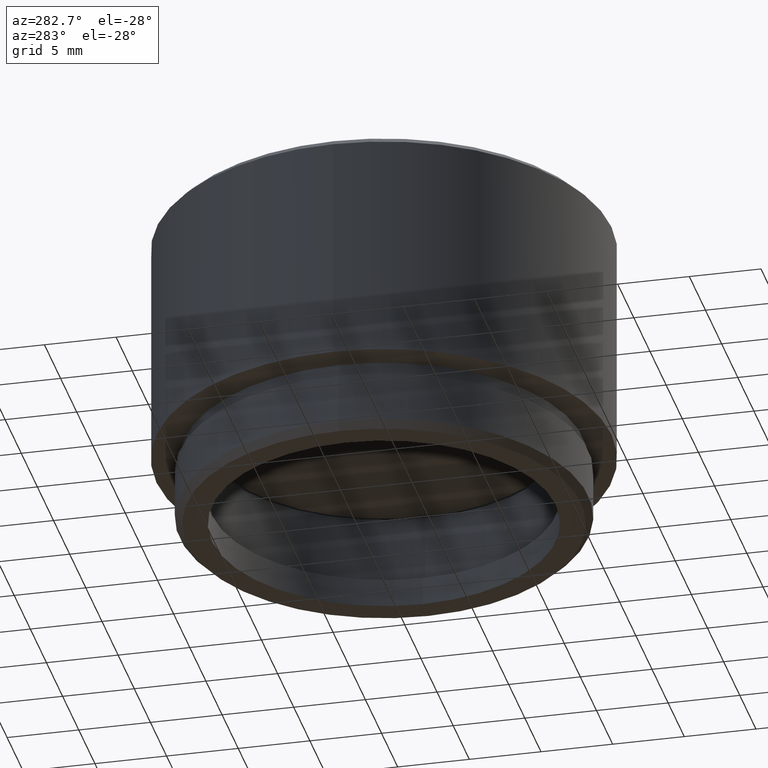
[diagram: clean part render]
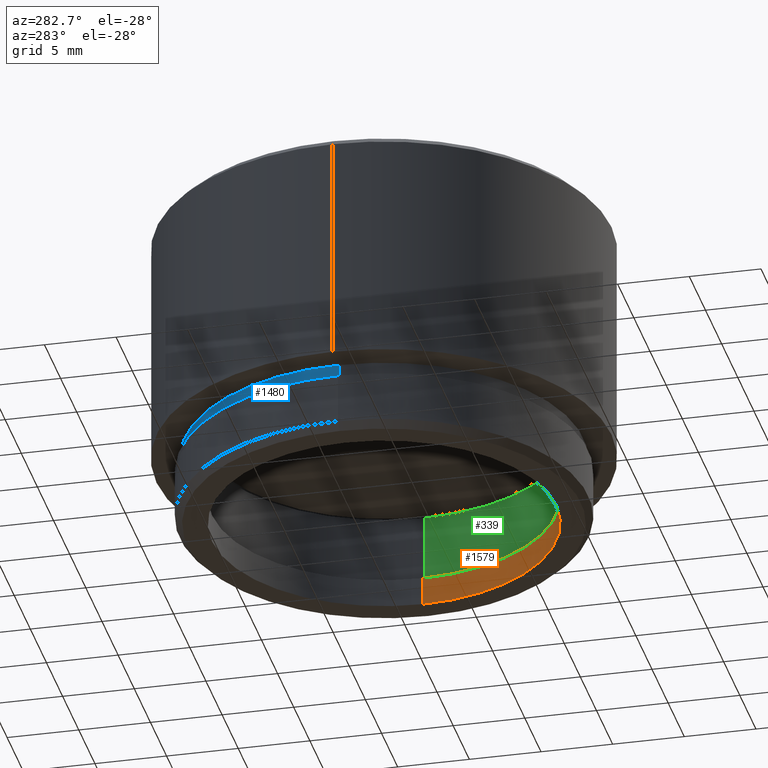
[diagram: same view with three faces highlighted in distinct colors, each labeled with its STEP entity id]
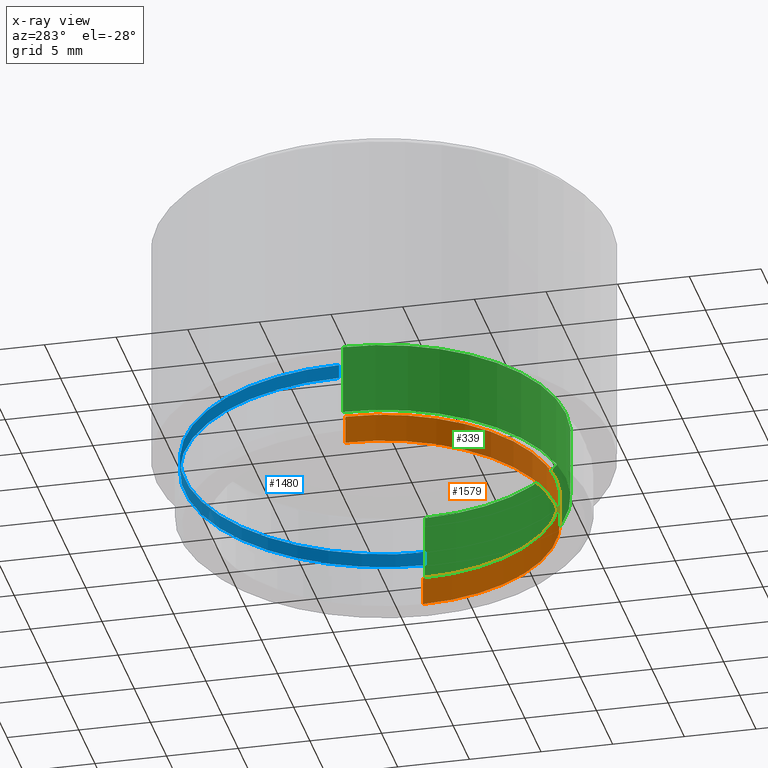
[diagram: x-ray of the same camera — body ghosted, the three highlighted faces saturated]
A machine part, auxiliary view with three faces highlighted in distinct colors.
The next image is the same camera in x-ray (body ghosted, the three faces saturated) — at least one of them is partly hidden behind the body in this view.
Their STEP definitions:

[orange] entity #1579 — the highlighted cylindrical surface (partial cylindrical patch) has radius 12 mm, axis along (-0, -0, -1).
#201 = CIRCLE ( 'NONE', #1485, 12.00000000000000178 ) ;
#277 = ORIENTED_EDGE ( 'NONE', *, *, #1665, .F. ) ;
#279 = ORIENTED_EDGE ( 'NONE', *, *, #488, .T. ) ;
#283 = EDGE_CURVE ( 'NONE', #1452, #1587, #1085, .T. ) ;
#390 = CARTESIAN_POINT ( 'NONE',  ( 12.00000000000000178, 1.469576158976824144E-15, 1.999999999999998224 ) ) ;
#392 = DIRECTION ( 'NONE',  ( 0.000000000000000000, 0.000000000000000000, 1.000000000000000000 ) ) ;
#475 = ORIENTED_EDGE ( 'NONE', *, *, #1277, .F. ) ;
#483 = VERTEX_POINT ( 'NONE', #965 ) ;
#488 = EDGE_CURVE ( 'NONE', #1279, #1452, #1381, .T. ) ;
#489 = EDGE_LOOP ( 'NONE', ( #279, #1505, #475, #277 ) ) ;
#505 = AXIS2_PLACEMENT_3D ( 'NONE', #846, #590, #1369 ) ;
#590 = DIRECTION ( 'NONE',  ( 0.000000000000000000, 0.000000000000000000, 1.000000000000000000 ) ) ;
#644 = DIRECTION ( 'NONE',  ( -0.000000000000000000, -0.000000000000000000, -1.000000000000000000 ) ) ;
#722 = VECTOR ( 'NONE', #1061, 1000.000000000000000 ) ;
#770 = FACE_OUTER_BOUND ( 'NONE', #489, .T. ) ;
#779 = AXIS2_PLACEMENT_3D ( 'NONE', #1301, #644, #1689 ) ;
#782 = CARTESIAN_POINT ( 'NONE',  ( -12.00000000000000178, 0.000000000000000000, 1.999999999999998224 ) ) ;
#793 = LINE ( 'NONE', #1315, #722 ) ;
#846 = CARTESIAN_POINT ( 'NONE',  ( 0.000000000000000000, 0.000000000000000000, 1.999999999999998224 ) ) ;
#911 = DIRECTION ( 'NONE',  ( 1.000000000000000000, 0.000000000000000000, 0.000000000000000000 ) ) ;
#965 = CARTESIAN_POINT ( 'NONE',  ( -12.00000000000000178, 0.000000000000000000, 0.000000000000000000 ) ) ;
#1036 = CARTESIAN_POINT ( 'NONE',  ( 0.000000000000000000, 0.000000000000000000, 0.000000000000000000 ) ) ;
#1061 = DIRECTION ( 'NONE',  ( -0.000000000000000000, -0.000000000000000000, -1.000000000000000000 ) ) ;
#1066 = VECTOR ( 'NONE', #1629, 1000.000000000000000 ) ;
#1085 = LINE ( 'NONE', #1093, #1066 ) ;
#1093 = CARTESIAN_POINT ( 'NONE',  ( 12.00000000000000178, 1.469576158976824144E-15, 21.50000000000000000 ) ) ;
#1277 = EDGE_CURVE ( 'NONE', #483, #1587, #201, .T. ) ;
#1279 = VERTEX_POINT ( 'NONE', #782 ) ;
#1291 = CYLINDRICAL_SURFACE ( 'NONE', #779, 12.00000000000000178 ) ;
#1301 = CARTESIAN_POINT ( 'NONE',  ( 0.000000000000000000, 0.000000000000000000, 21.50000000000000000 ) ) ;
#1315 = CARTESIAN_POINT ( 'NONE',  ( -12.00000000000000178, 0.000000000000000000, 21.50000000000000000 ) ) ;
#1369 = DIRECTION ( 'NONE',  ( 1.000000000000000000, 0.000000000000000000, 0.000000000000000000 ) ) ;
#1381 = CIRCLE ( 'NONE', #505, 12.00000000000000178 ) ;
#1452 = VERTEX_POINT ( 'NONE', #390 ) ;
#1485 = AXIS2_PLACEMENT_3D ( 'NONE', #1036, #392, #911 ) ;
#1505 = ORIENTED_EDGE ( 'NONE', *, *, #283, .T. ) ;
#1574 = CARTESIAN_POINT ( 'NONE',  ( 12.00000000000000178, 1.469576158976824144E-15, 0.000000000000000000 ) ) ;
#1579 = ADVANCED_FACE ( 'NONE', ( #770 ), #1291, .F. ) ;
#1587 = VERTEX_POINT ( 'NONE', #1574 ) ;
#1629 = DIRECTION ( 'NONE',  ( -0.000000000000000000, -0.000000000000000000, -1.000000000000000000 ) ) ;
#1665 = EDGE_CURVE ( 'NONE', #1279, #483, #793, .T. ) ;
#1689 = DIRECTION ( 'NONE',  ( -1.000000000000000000, 0.000000000000000000, 0.000000000000000000 ) ) ;

[blue] entity #1480 — the highlighted cylindrical surface (partial cylindrical patch) has radius 13.9 mm, axis along (0, 0, 1).
#20 = ORIENTED_EDGE ( 'NONE', *, *, #650, .T. ) ;
#37 = EDGE_CURVE ( 'NONE', #626, #1470, #1339, .T. ) ;
#38 = CARTESIAN_POINT ( 'NONE',  ( 0.000000000000000000, 0.000000000000000000, 5.000000000000000000 ) ) ;
#72 = DIRECTION ( 'NONE',  ( -1.000000000000000000, 0.000000000000000000, 0.000000000000000000 ) ) ;
#88 = LINE ( 'NONE', #874, #685 ) ;
#139 = EDGE_LOOP ( 'NONE', ( #1539, #20, #1300, #297 ) ) ;
#156 = EDGE_CURVE ( 'NONE', #1013, #203, #1560, .T. ) ;
#173 = CARTESIAN_POINT ( 'NONE',  ( 13.90000000000000036, 0.000000000000000000, 4.000000000000000000 ) ) ;
#203 = VERTEX_POINT ( 'NONE', #173 ) ;
#297 = ORIENTED_EDGE ( 'NONE', *, *, #1490, .F. ) ;
#323 = DIRECTION ( 'NONE',  ( -1.000000000000000000, 0.000000000000000000, 0.000000000000000000 ) ) ;
#397 = DIRECTION ( 'NONE',  ( 1.000000000000000000, 0.000000000000000000, 0.000000000000000000 ) ) ;
#501 = CARTESIAN_POINT ( 'NONE',  ( 0.000000000000000000, 0.000000000000000000, 4.000000000000000000 ) ) ;
#557 = VECTOR ( 'NONE', #1531, 1000.000000000000000 ) ;
#609 = CARTESIAN_POINT ( 'NONE',  ( -13.90000000000000036, 1.702259050814821084E-15, 5.000000000000000000 ) ) ;
#626 = VERTEX_POINT ( 'NONE', #609 ) ;
#635 = CARTESIAN_POINT ( 'NONE',  ( 13.90000000000000036, 0.000000000000000000, 5.000000000000000000 ) ) ;
#650 = EDGE_CURVE ( 'NONE', #1013, #626, #88, .T. ) ;
#685 = VECTOR ( 'NONE', #1395, 1000.000000000000000 ) ;
#809 = DIRECTION ( 'NONE',  ( 0.000000000000000000, 0.000000000000000000, -1.000000000000000000 ) ) ;
#818 = AXIS2_PLACEMENT_3D ( 'NONE', #1371, #1251, #72 ) ;
#874 = CARTESIAN_POINT ( 'NONE',  ( -13.90000000000000036, 1.702259050814821084E-15, 4.000000000000000000 ) ) ;
#885 = FACE_OUTER_BOUND ( 'NONE', #139, .T. ) ;
#1013 = VERTEX_POINT ( 'NONE', #1091 ) ;
#1091 = CARTESIAN_POINT ( 'NONE',  ( -13.90000000000000036, 1.702259050814821084E-15, 4.000000000000000000 ) ) ;
#1139 = CYLINDRICAL_SURFACE ( 'NONE', #1296, 13.90000000000000036 ) ;
#1251 = DIRECTION ( 'NONE',  ( 0.000000000000000000, 0.000000000000000000, -1.000000000000000000 ) ) ;
#1296 = AXIS2_PLACEMENT_3D ( 'NONE', #501, #1540, #397 ) ;
#1300 = ORIENTED_EDGE ( 'NONE', *, *, #37, .T. ) ;
#1312 = AXIS2_PLACEMENT_3D ( 'NONE', #38, #809, #323 ) ;
#1339 = CIRCLE ( 'NONE', #1312, 13.90000000000000036 ) ;
#1371 = CARTESIAN_POINT ( 'NONE',  ( 0.000000000000000000, 0.000000000000000000, 4.000000000000000000 ) ) ;
#1395 = DIRECTION ( 'NONE',  ( 0.000000000000000000, 0.000000000000000000, 1.000000000000000000 ) ) ;
#1403 = CARTESIAN_POINT ( 'NONE',  ( 13.90000000000000036, 0.000000000000000000, 4.000000000000000000 ) ) ;
#1470 = VERTEX_POINT ( 'NONE', #635 ) ;
#1480 = ADVANCED_FACE ( 'NONE', ( #885 ), #1139, .T. ) ;
#1490 = EDGE_CURVE ( 'NONE', #203, #1470, #1557, .T. ) ;
#1531 = DIRECTION ( 'NONE',  ( 0.000000000000000000, 0.000000000000000000, 1.000000000000000000 ) ) ;
#1539 = ORIENTED_EDGE ( 'NONE', *, *, #156, .F. ) ;
#1540 = DIRECTION ( 'NONE',  ( 0.000000000000000000, 0.000000000000000000, 1.000000000000000000 ) ) ;
#1557 = LINE ( 'NONE', #1403, #557 ) ;
#1560 = CIRCLE ( 'NONE', #818, 13.90000000000000036 ) ;

[green] entity #339 — the highlighted cylindrical surface (partial cylindrical patch) has radius 12.7 mm, axis along (0, 0, 1).
#39 = VERTEX_POINT ( 'NONE', #1106 ) ;
#134 = FACE_OUTER_BOUND ( 'NONE', #845, .T. ) ;
#281 = LINE ( 'NONE', #677, #943 ) ;
#339 = ADVANCED_FACE ( 'NONE', ( #134 ), #1293, .F. ) ;
#420 = EDGE_CURVE ( 'NONE', #1025, #550, #281, .T. ) ;
#439 = ORIENTED_EDGE ( 'NONE', *, *, #728, .F. ) ;
#469 = DIRECTION ( 'NONE',  ( 0.000000000000000000, 0.000000000000000000, 1.000000000000000000 ) ) ;
#495 = CARTESIAN_POINT ( 'NONE',  ( 0.000000000000000000, 0.000000000000000000, 1.999999999999997335 ) ) ;
#550 = VERTEX_POINT ( 'NONE', #1633 ) ;
#582 = VECTOR ( 'NONE', #1704, 1000.000000000000000 ) ;
#655 = CARTESIAN_POINT ( 'NONE',  ( -12.69999999999999929, 1.555301434917138433E-15, 1.999999999999997335 ) ) ;
#677 = CARTESIAN_POINT ( 'NONE',  ( 12.69999999999999929, 0.000000000000000000, 1.999999999999997335 ) ) ;
#684 = AXIS2_PLACEMENT_3D ( 'NONE', #1177, #912, #796 ) ;
#710 = AXIS2_PLACEMENT_3D ( 'NONE', #495, #469, #1655 ) ;
#728 = EDGE_CURVE ( 'NONE', #1212, #1025, #1528, .T. ) ;
#795 = EDGE_CURVE ( 'NONE', #1212, #39, #918, .T. ) ;
#796 = DIRECTION ( 'NONE',  ( 1.000000000000000000, 0.000000000000000000, 0.000000000000000000 ) ) ;
#845 = EDGE_LOOP ( 'NONE', ( #439, #1578, #1081, #1417 ) ) ;
#902 = DIRECTION ( 'NONE',  ( 1.000000000000000000, 0.000000000000000000, 0.000000000000000000 ) ) ;
#912 = DIRECTION ( 'NONE',  ( -0.000000000000000000, -0.000000000000000000, 1.000000000000000000 ) ) ;
#918 = LINE ( 'NONE', #1171, #582 ) ;
#943 = VECTOR ( 'NONE', #1198, 1000.000000000000000 ) ;
#993 = CIRCLE ( 'NONE', #1546, 12.69999999999999929 ) ;
#1025 = VERTEX_POINT ( 'NONE', #1238 ) ;
#1081 = ORIENTED_EDGE ( 'NONE', *, *, #1536, .T. ) ;
#1106 = CARTESIAN_POINT ( 'NONE',  ( -12.69999999999999929, 1.555301434917138433E-15, 6.999999999999997335 ) ) ;
#1171 = CARTESIAN_POINT ( 'NONE',  ( -12.69999999999999929, 1.555301434917138433E-15, 1.999999999999997335 ) ) ;
#1177 = CARTESIAN_POINT ( 'NONE',  ( 0.000000000000000000, 0.000000000000000000, 1.999999999999997335 ) ) ;
#1198 = DIRECTION ( 'NONE',  ( -0.000000000000000000, -0.000000000000000000, 1.000000000000000000 ) ) ;
#1212 = VERTEX_POINT ( 'NONE', #655 ) ;
#1238 = CARTESIAN_POINT ( 'NONE',  ( 12.69999999999999929, 0.000000000000000000, 1.999999999999997335 ) ) ;
#1293 = CYLINDRICAL_SURFACE ( 'NONE', #684, 12.69999999999999929 ) ;
#1417 = ORIENTED_EDGE ( 'NONE', *, *, #420, .F. ) ;
#1441 = CARTESIAN_POINT ( 'NONE',  ( 0.000000000000000000, 0.000000000000000000, 6.999999999999997335 ) ) ;
#1528 = CIRCLE ( 'NONE', #710, 12.69999999999999929 ) ;
#1536 = EDGE_CURVE ( 'NONE', #39, #550, #993, .T. ) ;
#1546 = AXIS2_PLACEMENT_3D ( 'NONE', #1441, #1677, #902 ) ;
#1578 = ORIENTED_EDGE ( 'NONE', *, *, #795, .T. ) ;
#1633 = CARTESIAN_POINT ( 'NONE',  ( 12.69999999999999929, 0.000000000000000000, 6.999999999999997335 ) ) ;
#1655 = DIRECTION ( 'NONE',  ( 1.000000000000000000, 0.000000000000000000, 0.000000000000000000 ) ) ;
#1677 = DIRECTION ( 'NONE',  ( 0.000000000000000000, 0.000000000000000000, 1.000000000000000000 ) ) ;
#1704 = DIRECTION ( 'NONE',  ( -0.000000000000000000, -0.000000000000000000, 1.000000000000000000 ) ) ;